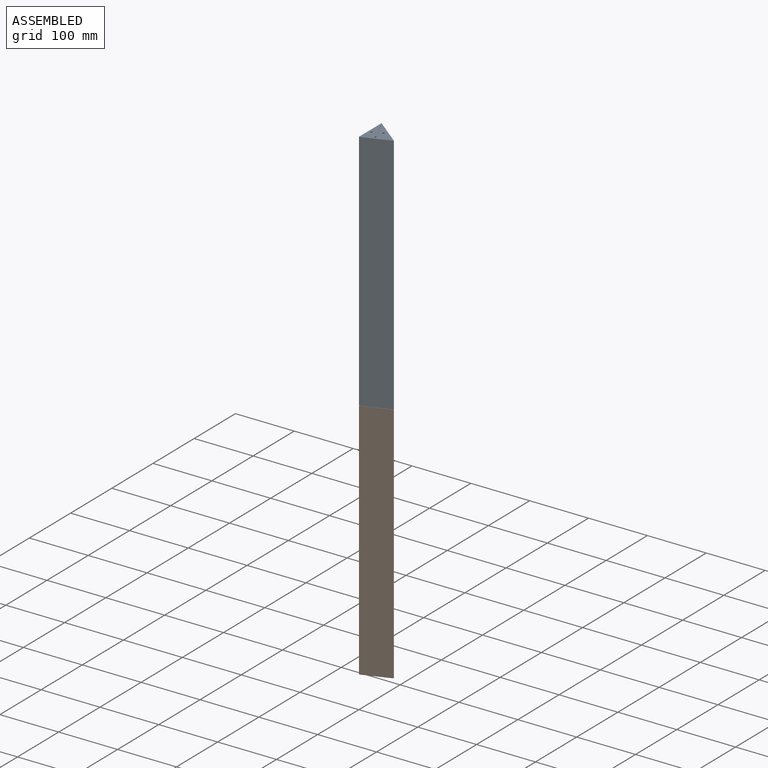
[diagram: assembled view]
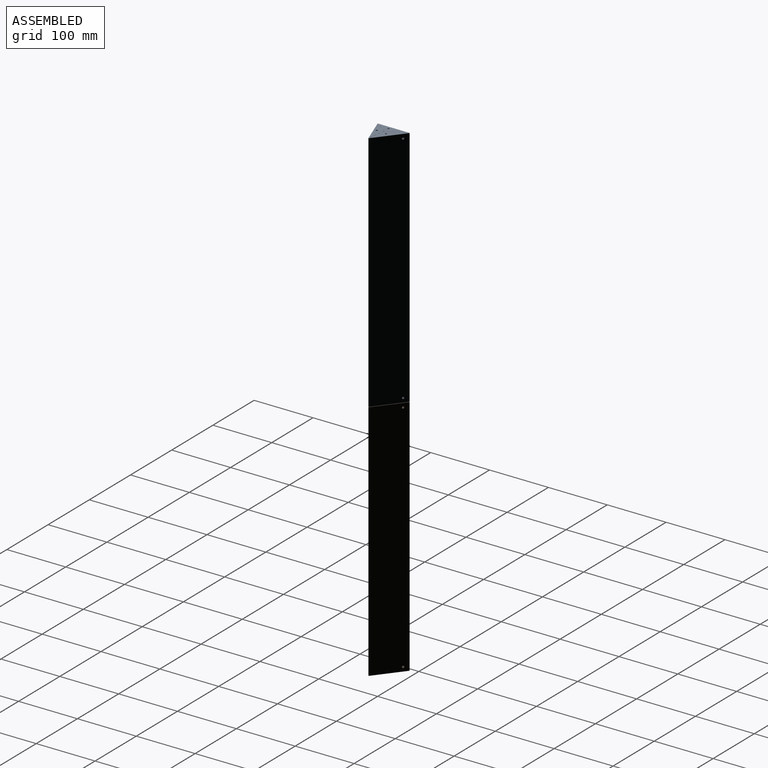
[diagram: assembled view, second angle]
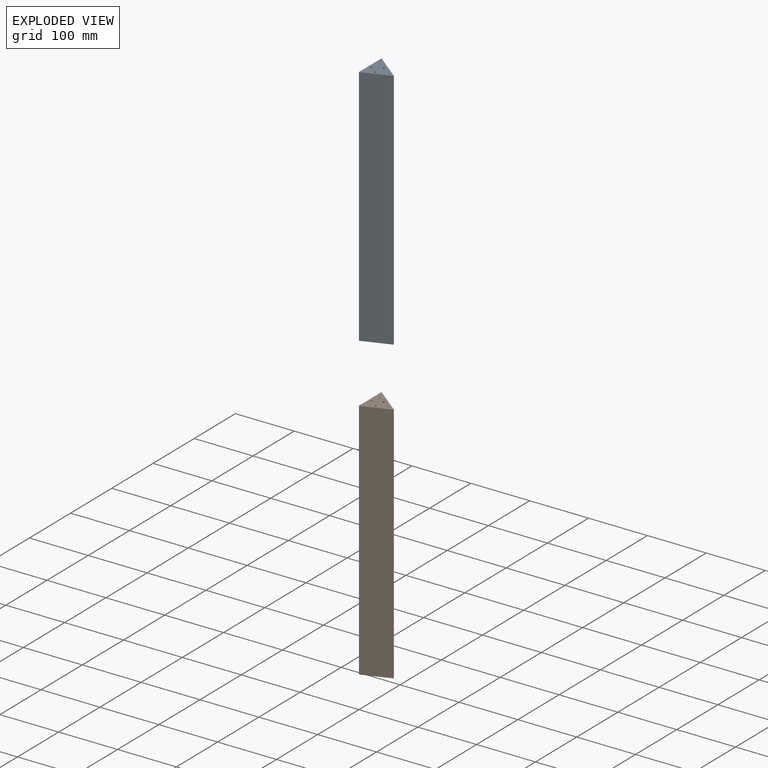
[diagram: exploded view]
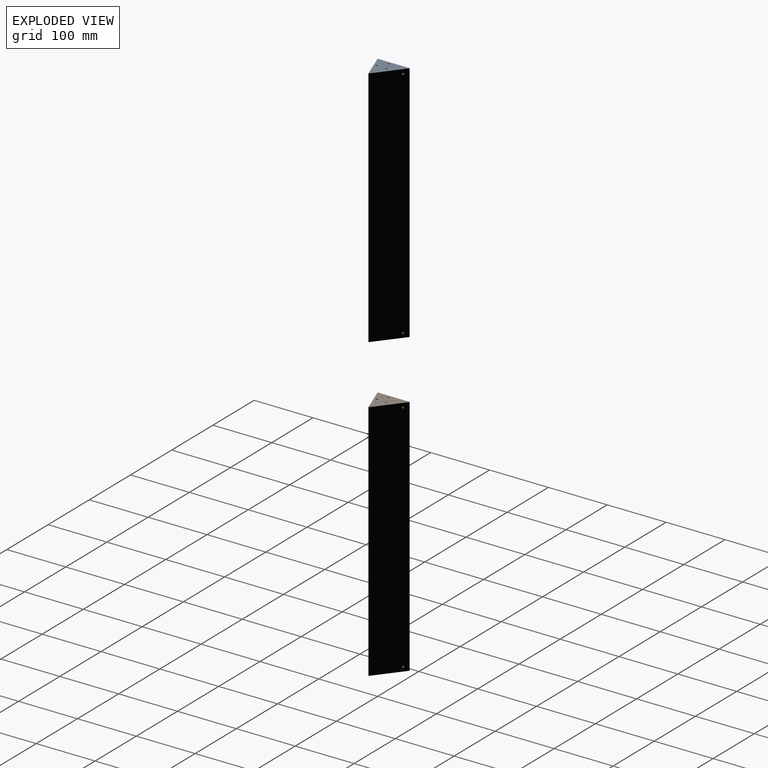
[diagram: exploded view, second angle]
FCSTD DOCUMENT  (FreeCAD 1.1R38827 (Git))
Label: composit_stand3_tech_sector_pillar_model
License: All rights reserved
LicenseURL: http://en.wikipedia.org/wiki/All_rights_reserved
objects: PartDesign::Body×3, App::Link×3, PartDesign::SubShapeBinder×2, PartDesign::FeaturePython×2, PartDesign::CoordinateSystem×2, Part::FeaturePython×2, Part::Cylinder×1, Part::MultiFuse×1, PartDesign::Boolean×1, Part::Mirroring×1, PartDesign::FeatureBase×1
note: 20 computed .brp shape members not serialized (recipe doc carries the construction recipe); baked Part::Feature solids carry a one-line shape summary decoded from their .brp
EXTERNAL_REF file=composit_stand3_tech_sector_pillar_main.FCStd obj=Sketch
EXTERNAL_REF file=composit_stand3_tech_sector_main.FCStd obj=Spreadsheet
EXTERNAL_REF file=composit_stand3_tech_sector_pillar_main.FCStd obj=Placment
EXTERNAL_REF file=composit_stand3_tech_sector_pillar_main.FCStd obj=Join
EXTERNAL_REF file=composit_stand3_tech_sector_pillar_main.FCStd obj=Join001

FEATURE [PartDesign::SubShapeBinder] Binder
  BindCopyOnChange = 0
  BindMode = 0
  ClaimChildren = false
  Fuse = false
  MakeFace = true
  OffsetFill = false
  OffsetIntersection = false
  OffsetJoinType = 0
  OffsetOpenResult = false
  PartialLoad = false
  Relative = true
  Support = -> [<external composit_stand3_tech_sector_pillar_main.FCStd>#Sketch]
  _Version = 2
FEATURE [PartDesign::SubShapeBinder] Binder001
  BindCopyOnChange = 0
  BindMode = 0
  ClaimChildren = true
  Context = -> Body [Binder001.]
  Fuse = false
  MakeFace = true
  OffsetFill = false
  OffsetIntersection = false
  OffsetJoinType = 0
  OffsetOpenResult = false
  PartialLoad = false
  Placement = pos=(0,0,0.4) rot=(0,0,1;0rad)
  Relative = false
  Support = -> [Binder]
  _Version = 2
FEATURE [PartDesign::FeaturePython] BaseBend  # WARN: FeaturePython — macro-defined, semantics opaque (R4)
  BendSide = 0
  BendSketch = -> Binder001
  MidPlane = false
  Reverse = false
  Suppressed = false
  length = 412.2
  radius = 0.1
  thickness = 0.3
  expr: length = <<composit_stand3_tech_sector_main>>#<<Properties>>.height - 3 mm * 2 - 0.4 mm * 2
FEATURE [PartDesign::FeaturePython] Bend  # WARN: FeaturePython — macro-defined, semantics opaque (R4)
  AutoMiter = true
  BaseFeature = -> BaseBend
  BendType = 0
  LengthList = [15]
  LengthSpec = 0
  NonperforationMaxLength = 5
  Perforate = false
  PerforationAngle = 0
  PerforationInitialLength = 5
  PerforationMaxLength = 5
  ReliefFactor = 0.7
  Suppressed = false
  UseReliefFactor = false
  angle = 90
  baseObject = -> BaseBend [Edge11,Edge26,Edge42,Edge14,Edge29,Edge43]
  bendAList = [90]
  extend1 = 0
  extend2 = 0
  gap1 = 0
  gap2 = 0
  invert = false
  kfactor = 0.5
  length = 15
  maxExtendDist = 5
  minGap = 0.2
  minReliefGap = 1
  miterangle1 = 0
  miterangle2 = 0
  offset = 0
  radius = 0.1
  reliefType = 0
  reliefd = 1
  reliefw = 0.8
  sketchflip = false
  sketchinvert = false
  unfold = false
  expr: radius = BaseBend.radius
FEATURE [PartDesign::Body] Body001  label="Body"
  AllowCompound = false
  Origin = -> Origin001
FEATURE [App::Link] Link  label="front_support_intersection_placement"
  LinkTransform = true
  LinkedObject = -> <external composit_stand3_tech_sector_pillar_main.FCStd>#Placment
FEATURE [PartDesign::CoordinateSystem] Local_CS  label="edge_LCS"
  AttacherType = Attacher::AttachEngine3D
  AttachmentOffset = pos=(-3.6e-15,55,0) rot=(0,0,1;2.47164rad)
  AttachmentSupport = -> [XY_Plane]
  MapMode = 5
  Placement = pos=(-3.6e-15,55,0) rot=(0,0,1;2.47164rad)
  expr: AttachmentOffset = <<front_support_intersection_placement>>.LinkedObject.Placement
FEATURE [App::Link] Link001  label="holes"
  LinkedObject = -> <external composit_stand3_tech_sector_pillar_main.FCStd>#Join
FEATURE [Part::Cylinder] Cylinder
  Angle = 360
  AttacherType = Attacher::AttachEngine3D
  FirstAngle = 0
  Height = 9
  Radius = 1.7
  SecondAngle = 0
FEATURE [Part::FeaturePython] Populate  label="Populate holes with Cylinder"  # WARN: FeaturePython — macro-defined, semantics opaque (R4)
  Copying = 0
  ExposePlacement = false
  MarkerShape = 1
  MarkerSize = 0
  NumElements = 0
  Object = -> Cylinder
  OutputCompounding = 1
  PlacementsTo = -> Link001
  Referencing = 0
  Type = lattice2PopulateCopies.LatticePopulateCopies
  isLattice = 0
FEATURE [App::Link] Link002  label="plexiglass_fix_holes"
  LinkedObject = -> <external composit_stand3_tech_sector_pillar_main.FCStd>#Join001
FEATURE [Part::FeaturePython] Populate001  label="Populate plexiglass_fix_holes with Cylinder"  # WARN: FeaturePython — macro-defined, semantics opaque (R4)
  Copying = 0
  ExposePlacement = false
  MarkerShape = 1
  MarkerSize = 0
  NumElements = 0
  Object = -> Cylinder
  OutputCompounding = 1
  PlacementsTo = -> Link002
  Referencing = 0
  Type = lattice2PopulateCopies.LatticePopulateCopies
  isLattice = 0
FEATURE [Part::MultiFuse] Fusion
  Shapes = -> [Populate,Populate001]
FEATURE [PartDesign::Boolean] Boolean
  BaseFeature = -> Bend
  Group = -> [Fusion]
  Suppressed = false
  Type = 1
  UsePlacement = true
FEATURE [PartDesign::Body] Body  label="pillar"
  AllowCompound = false
  Group = -> [Binder001,BaseBend,Bend,Local_CS,Boolean]
  Origin = -> Origin
  Tip = -> Boolean
FEATURE [Part::Mirroring] Part__Mirroring  label="pillar (Mirror #1)"
  Base = (0,0,0)
  Normal = (0,0,1)
  Source = -> Body
FEATURE [PartDesign::FeatureBase] BaseFeature
  BaseFeature = -> Part__Mirroring
  Suppressed = false
FEATURE [PartDesign::CoordinateSystem] Local_CS001  label="mirror_LCS"
  AttacherType = Attacher::AttachEngine3D
  AttachmentOffset = pos=(-3.6e-15,55,-413) rot=(0,0,1;2.47164rad)
  AttachmentSupport = -> [XY_Plane002]
  MapMode = 5
  Placement = pos=(-3.6e-15,55,-413) rot=(0,0,1;2.47164rad)
  expr: AttachmentOffset = placement(vector(0; 0; -(<<composit_stand3_tech_sector_main>>#<<Properties>>.height - 6 mm)); rotation(0; 0; 0)) * <<front_support_intersection_placement>>.LinkedObject.Placement
FEATURE [PartDesign::Body] Body002  label="pillar_mirror"
  AllowCompound = false
  BaseFeature = -> Part__Mirroring
  Group = -> [BaseFeature,Local_CS001]
  Origin = -> Origin002
  Tip = -> BaseFeature

RESOLVED EXTERNAL PARTS (link-assembly join: the EXTERNAL_REF files above that resolve inside this repo's crawl, each included once):
---- part composit_stand3_tech_sector_main.FCStd = doc fcstd_957516828fee ----
FCSTD DOCUMENT  (FreeCAD 1.1R38827 (Git))
Label: composit_stand3_tech_sector_main
License: All rights reserved
LicenseURL: http://en.wikipedia.org/wiki/All_rights_reserved
objects: Spreadsheet::Sheet×1

FEATURE [Spreadsheet::Sheet] Spreadsheet  label="Properties"
  cells = B2(height)==419 mm
